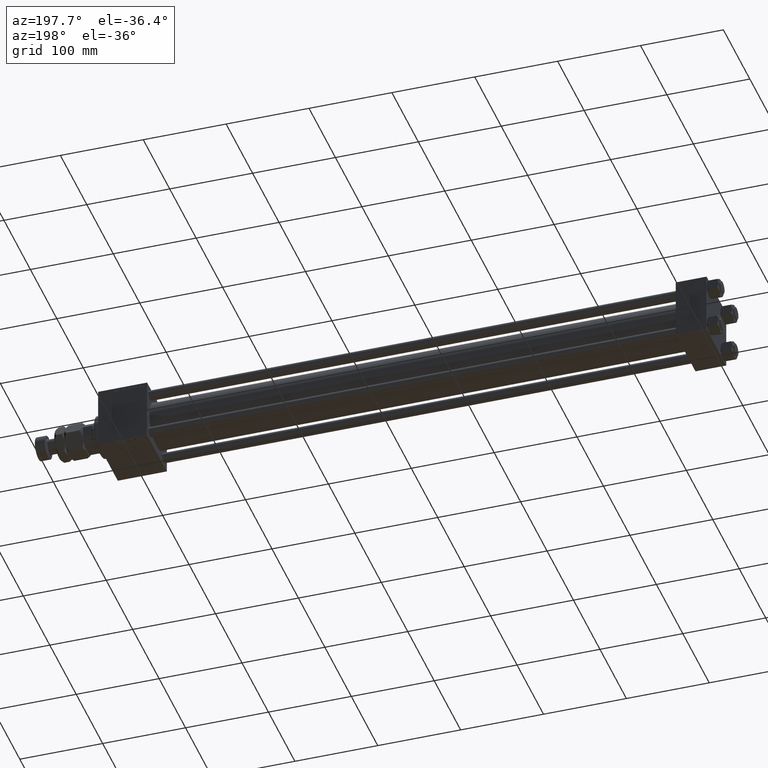
[diagram: clean part render]
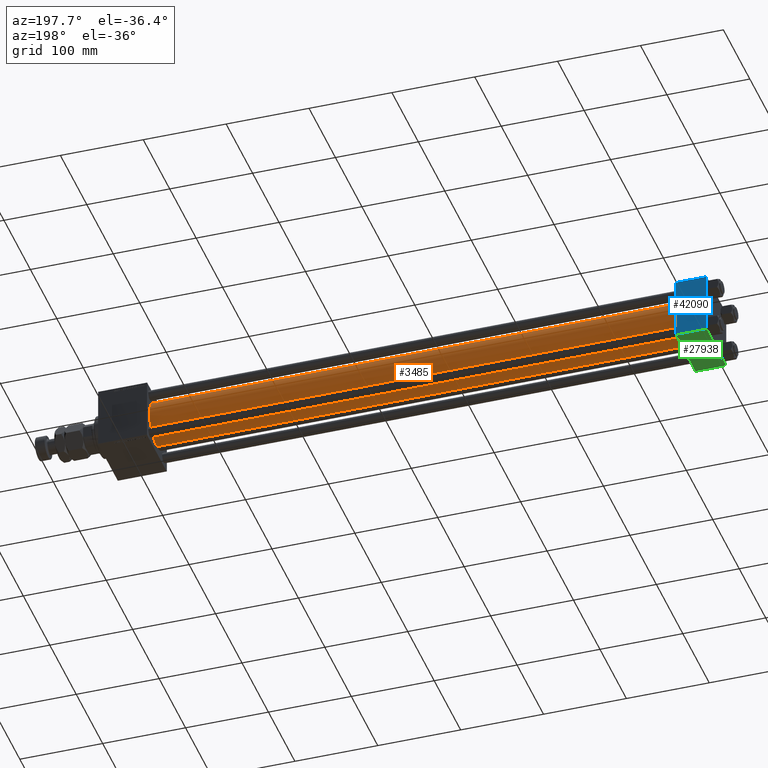
[diagram: same view with three faces highlighted in distinct colors, each labeled with its STEP entity id]
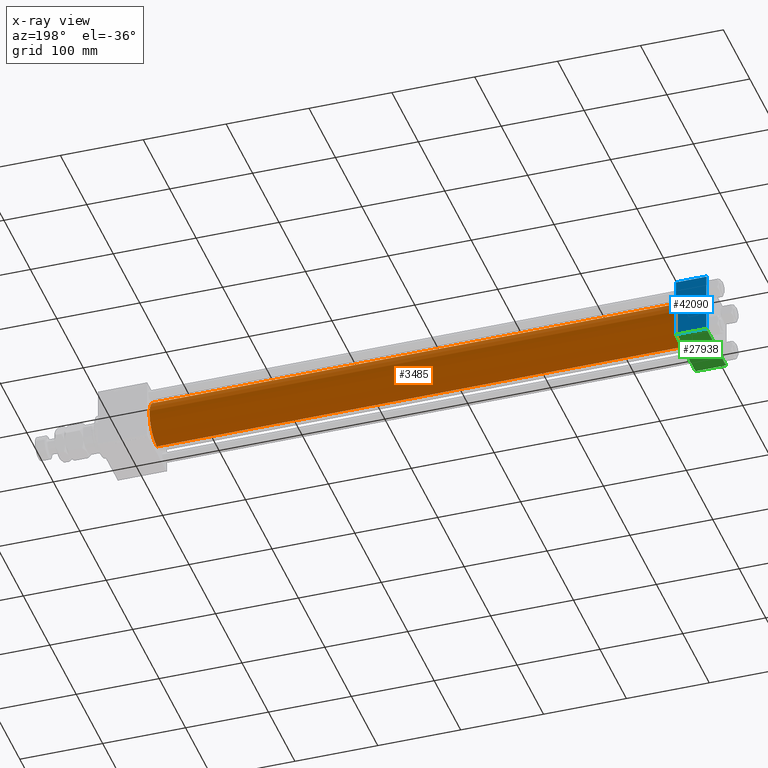
[diagram: x-ray of the same camera — body ghosted, the three highlighted faces saturated]
A machine part, auxiliary view with three faces highlighted in distinct colors.
The next image is the same camera in x-ray (body ghosted, the three faces saturated) — at least one of them is partly hidden behind the body in this view.
Their STEP definitions:

[orange] entity #3485 — the highlighted cylindrical surface (edge-blend (fillet) strip) has radius 28 mm, axis along (-1, -0, -0).
#779 = VERTEX_POINT ( 'NONE', #4717 ) ;
#1077 = DIRECTION ( 'NONE',  ( -1.000000000000000000, -0.000000000000000000, -0.000000000000000000 ) ) ;
#1278 = CARTESIAN_POINT ( 'NONE',  ( 675.0000000000000000, -2.602085213965210642E-15, 0.000000000000000000 ) ) ;
#2387 = CIRCLE ( 'NONE', #37546, 28.00000000000000000 ) ;
#3485 = ADVANCED_FACE ( 'NONE', ( #50094 ), #30142, .T. ) ;
#4412 = CARTESIAN_POINT ( 'NONE',  ( 675.0000000000000000, -2.602085213965210642E-15, 28.00000000000000000 ) ) ;
#4717 = CARTESIAN_POINT ( 'NONE',  ( 675.0000000000000000, 8.269258236473784371E-16, -28.00000000000000000 ) ) ;
#6912 = DIRECTION ( 'NONE',  ( 1.000000000000000000, 0.000000000000000000, 0.000000000000000000 ) ) ;
#8703 = LINE ( 'NONE', #8960, #41941 ) ;
#8938 = CARTESIAN_POINT ( 'NONE',  ( 37.00000000000003553, -2.602085213965210642E-15, 0.000000000000000000 ) ) ;
#8960 = CARTESIAN_POINT ( 'NONE',  ( 675.0000000000000000, 8.269258236473784371E-16, -28.00000000000000000 ) ) ;
#11902 = DIRECTION ( 'NONE',  ( 0.000000000000000000, 0.000000000000000000, -1.000000000000000000 ) ) ;
#12435 = ORIENTED_EDGE ( 'NONE', *, *, #49445, .F. ) ;
#14122 = EDGE_LOOP ( 'NONE', ( #50585, #23062, #48073, #12435 ) ) ;
#16108 = AXIS2_PLACEMENT_3D ( 'NONE', #1278, #46141, #37225 ) ;
#16731 = EDGE_CURVE ( 'NONE', #779, #24915, #19990, .T. ) ;
#16838 = LINE ( 'NONE', #37272, #48504 ) ;
#17091 = DIRECTION ( 'NONE',  ( -1.000000000000000000, -0.000000000000000000, -0.000000000000000000 ) ) ;
#19990 = CIRCLE ( 'NONE', #46757, 28.00000000000000000 ) ;
#22233 = EDGE_CURVE ( 'NONE', #779, #28494, #8703, .T. ) ;
#23062 = ORIENTED_EDGE ( 'NONE', *, *, #22233, .T. ) ;
#24470 = VERTEX_POINT ( 'NONE', #46298 ) ;
#24915 = VERTEX_POINT ( 'NONE', #4412 ) ;
#28494 = VERTEX_POINT ( 'NONE', #47495 ) ;
#28633 = DIRECTION ( 'NONE',  ( 0.000000000000000000, 0.000000000000000000, 1.000000000000000000 ) ) ;
#30142 = CYLINDRICAL_SURFACE ( 'NONE', #16108, 28.00000000000000000 ) ;
#37225 = DIRECTION ( 'NONE',  ( 0.000000000000000000, 0.000000000000000000, 1.000000000000000000 ) ) ;
#37272 = CARTESIAN_POINT ( 'NONE',  ( 675.0000000000000000, -2.602085213965210642E-15, 28.00000000000000000 ) ) ;
#37546 = AXIS2_PLACEMENT_3D ( 'NONE', #8938, #40933, #28633 ) ;
#40933 = DIRECTION ( 'NONE',  ( 1.000000000000000000, -0.000000000000000000, 0.000000000000000000 ) ) ;
#41941 = VECTOR ( 'NONE', #1077, 1000.000000000000000 ) ;
#46141 = DIRECTION ( 'NONE',  ( -1.000000000000000000, -0.000000000000000000, -0.000000000000000000 ) ) ;
#46298 = CARTESIAN_POINT ( 'NONE',  ( 37.00000000000003553, -2.602085213965210642E-15, 28.00000000000000000 ) ) ;
#46757 = AXIS2_PLACEMENT_3D ( 'NONE', #47844, #6912, #11902 ) ;
#47495 = CARTESIAN_POINT ( 'NONE',  ( 37.00000000000003553, 8.269258236473784371E-16, -28.00000000000000000 ) ) ;
#47844 = CARTESIAN_POINT ( 'NONE',  ( 675.0000000000000000, -2.602085213965210642E-15, 0.000000000000000000 ) ) ;
#48073 = ORIENTED_EDGE ( 'NONE', *, *, #48597, .T. ) ;
#48504 = VECTOR ( 'NONE', #17091, 1000.000000000000000 ) ;
#48597 = EDGE_CURVE ( 'NONE', #28494, #24470, #2387, .T. ) ;
#49445 = EDGE_CURVE ( 'NONE', #24915, #24470, #16838, .T. ) ;
#50094 = FACE_OUTER_BOUND ( 'NONE', #14122, .T. ) ;
#50585 = ORIENTED_EDGE ( 'NONE', *, *, #16731, .F. ) ;

[blue] entity #42090 — the highlighted planar face has unit normal (0, 1, 0).
#377 = ORIENTED_EDGE ( 'NONE', *, *, #37343, .T. ) ;
#573 = CARTESIAN_POINT ( 'NONE',  ( 37.00000000000000000, 37.49999999999999289, 37.50000000000000000 ) ) ;
#2228 = ORIENTED_EDGE ( 'NONE', *, *, #28148, .T. ) ;
#4351 = VECTOR ( 'NONE', #11615, 1000.000000000000000 ) ;
#5991 = LINE ( 'NONE', #42179, #22351 ) ;
#6101 = CARTESIAN_POINT ( 'NONE',  ( 37.00000000000000000, 37.49999999999999289, 37.00000000000000000 ) ) ;
#6278 = VECTOR ( 'NONE', #27539, 1000.000000000000000 ) ;
#7708 = VERTEX_POINT ( 'NONE', #9670 ) ;
#8116 = CARTESIAN_POINT ( 'NONE',  ( 37.00000000000000000, 37.49999999999999289, -36.99999999999998579 ) ) ;
#8534 = EDGE_CURVE ( 'NONE', #39214, #7708, #5991, .T. ) ;
#8690 = VERTEX_POINT ( 'NONE', #42706 ) ;
#9670 = CARTESIAN_POINT ( 'NONE',  ( 0.000000000000000000, 37.49999999999999289, -36.99999999999998579 ) ) ;
#10164 = DIRECTION ( 'NONE',  ( 0.000000000000000000, -0.000000000000000000, 1.000000000000000000 ) ) ;
#10698 = CARTESIAN_POINT ( 'NONE',  ( 37.00000000000000000, 37.49999999999999289, -36.99999999999998579 ) ) ;
#11103 = ORIENTED_EDGE ( 'NONE', *, *, #27331, .T. ) ;
#11615 = DIRECTION ( 'NONE',  ( 0.000000000000000000, 0.000000000000000000, -1.000000000000000000 ) ) ;
#11859 = EDGE_LOOP ( 'NONE', ( #2228, #377, #18776, #11103 ) ) ;
#18545 = CARTESIAN_POINT ( 'NONE',  ( 0.000000000000000000, 37.49999999999999289, 37.00000000000000000 ) ) ;
#18776 = ORIENTED_EDGE ( 'NONE', *, *, #8534, .F. ) ;
#20510 = LINE ( 'NONE', #573, #4351 ) ;
#22351 = VECTOR ( 'NONE', #49828, 1000.000000000000000 ) ;
#24374 = LINE ( 'NONE', #8116, #6278 ) ;
#26443 = AXIS2_PLACEMENT_3D ( 'NONE', #30875, #42408, #10164 ) ;
#27331 = EDGE_CURVE ( 'NONE', #39214, #8690, #29475, .T. ) ;
#27539 = DIRECTION ( 'NONE',  ( -1.000000000000000000, 0.000000000000000000, 0.000000000000000000 ) ) ;
#28148 = EDGE_CURVE ( 'NONE', #8690, #40878, #20510, .T. ) ;
#29475 = LINE ( 'NONE', #6101, #50405 ) ;
#29995 = DIRECTION ( 'NONE',  ( 1.000000000000000000, 0.000000000000000000, 0.000000000000000000 ) ) ;
#30875 = CARTESIAN_POINT ( 'NONE',  ( 37.00000000000000000, 37.49999999999999289, 37.50000000000000000 ) ) ;
#34808 = PLANE ( 'NONE',  #26443 ) ;
#37343 = EDGE_CURVE ( 'NONE', #40878, #7708, #24374, .T. ) ;
#39214 = VERTEX_POINT ( 'NONE', #18545 ) ;
#40878 = VERTEX_POINT ( 'NONE', #10698 ) ;
#42090 = ADVANCED_FACE ( 'NONE', ( #50308 ), #34808, .T. ) ;
#42179 = CARTESIAN_POINT ( 'NONE',  ( 0.000000000000000000, 37.49999999999999289, 37.50000000000000000 ) ) ;
#42408 = DIRECTION ( 'NONE',  ( -0.000000000000000000, 1.000000000000000000, 0.000000000000000000 ) ) ;
#42706 = CARTESIAN_POINT ( 'NONE',  ( 37.00000000000000000, 37.49999999999999289, 37.00000000000000000 ) ) ;
#49828 = DIRECTION ( 'NONE',  ( 0.000000000000000000, 0.000000000000000000, -1.000000000000000000 ) ) ;
#50308 = FACE_OUTER_BOUND ( 'NONE', #11859, .T. ) ;
#50405 = VECTOR ( 'NONE', #29995, 1000.000000000000000 ) ;

[green] entity #27938 — the highlighted planar face has unit normal (0, 0, -1).
#1079 = VERTEX_POINT ( 'NONE', #20149 ) ;
#4302 = CARTESIAN_POINT ( 'NONE',  ( 0.000000000000000000, 37.49999999999999289, -37.50000000000000000 ) ) ;
#4563 = VECTOR ( 'NONE', #15261, 1000.000000000000000 ) ;
#4603 = EDGE_CURVE ( 'NONE', #1079, #50355, #14559, .T. ) ;
#4813 = LINE ( 'NONE', #4302, #34476 ) ;
#4859 = LINE ( 'NONE', #29268, #21603 ) ;
#10314 = VECTOR ( 'NONE', #42095, 1000.000000000000000 ) ;
#14559 = LINE ( 'NONE', #46310, #10314 ) ;
#15261 = DIRECTION ( 'NONE',  ( -1.000000000000000000, 0.000000000000000000, 0.000000000000000000 ) ) ;
#15925 = CARTESIAN_POINT ( 'NONE',  ( 37.00000000000000000, 37.49999999999999289, -37.50000000000000000 ) ) ;
#16183 = DIRECTION ( 'NONE',  ( 0.000000000000000000, 1.000000000000000000, 9.251858538542972814E-17 ) ) ;
#20149 = CARTESIAN_POINT ( 'NONE',  ( 0.000000000000000000, 36.99999999999997868, -37.50000000000000000 ) ) ;
#21349 = ORIENTED_EDGE ( 'NONE', *, *, #4603, .T. ) ;
#21603 = VECTOR ( 'NONE', #49222, 1000.000000000000000 ) ;
#21891 = AXIS2_PLACEMENT_3D ( 'NONE', #15925, #31935, #16183 ) ;
#23905 = CARTESIAN_POINT ( 'NONE',  ( 37.00000000000000000, 36.99999999999997868, -37.50000000000000000 ) ) ;
#24436 = CARTESIAN_POINT ( 'NONE',  ( 37.00000000000000000, -37.00000000000002132, -37.50000000000000711 ) ) ;
#27318 = EDGE_CURVE ( 'NONE', #1079, #38691, #4813, .T. ) ;
#27938 = ADVANCED_FACE ( 'NONE', ( #35858 ), #47943, .T. ) ;
#29268 = CARTESIAN_POINT ( 'NONE',  ( 37.00000000000000000, 37.49999999999999289, -37.50000000000000000 ) ) ;
#29824 = EDGE_LOOP ( 'NONE', ( #45926, #21349, #46073, #32383 ) ) ;
#31935 = DIRECTION ( 'NONE',  ( 0.000000000000000000, 9.251858538542972814E-17, -1.000000000000000000 ) ) ;
#32048 = LINE ( 'NONE', #48054, #4563 ) ;
#32383 = ORIENTED_EDGE ( 'NONE', *, *, #36264, .T. ) ;
#34476 = VECTOR ( 'NONE', #44183, 1000.000000000000000 ) ;
#35858 = FACE_OUTER_BOUND ( 'NONE', #29824, .T. ) ;
#36264 = EDGE_CURVE ( 'NONE', #51368, #38691, #32048, .T. ) ;
#38074 = CARTESIAN_POINT ( 'NONE',  ( 0.000000000000000000, -37.00000000000002132, -37.50000000000000711 ) ) ;
#38691 = VERTEX_POINT ( 'NONE', #38074 ) ;
#42095 = DIRECTION ( 'NONE',  ( 1.000000000000000000, 0.000000000000000000, 0.000000000000000000 ) ) ;
#44183 = DIRECTION ( 'NONE',  ( 0.000000000000000000, -1.000000000000000000, -9.251858538542972814E-17 ) ) ;
#45926 = ORIENTED_EDGE ( 'NONE', *, *, #27318, .F. ) ;
#46073 = ORIENTED_EDGE ( 'NONE', *, *, #50731, .T. ) ;
#46310 = CARTESIAN_POINT ( 'NONE',  ( 37.00000000000000000, 36.99999999999997868, -37.50000000000000000 ) ) ;
#47943 = PLANE ( 'NONE',  #21891 ) ;
#48054 = CARTESIAN_POINT ( 'NONE',  ( 0.000000000000000000, -37.00000000000002132, -37.50000000000000711 ) ) ;
#49222 = DIRECTION ( 'NONE',  ( 0.000000000000000000, -1.000000000000000000, -9.251858538542972814E-17 ) ) ;
#50355 = VERTEX_POINT ( 'NONE', #23905 ) ;
#50731 = EDGE_CURVE ( 'NONE', #50355, #51368, #4859, .T. ) ;
#51368 = VERTEX_POINT ( 'NONE', #24436 ) ;